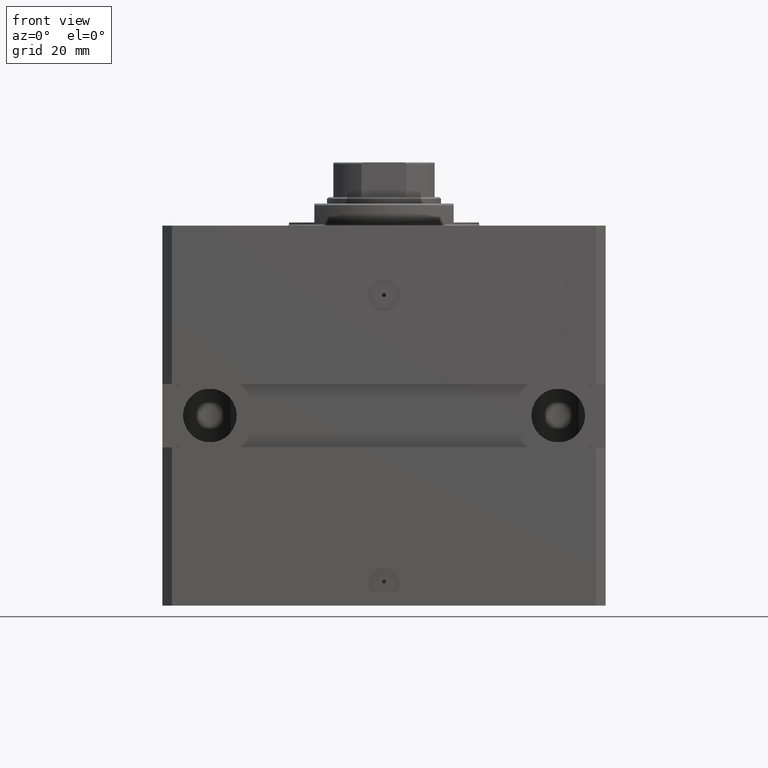
[diagram: clean part render]
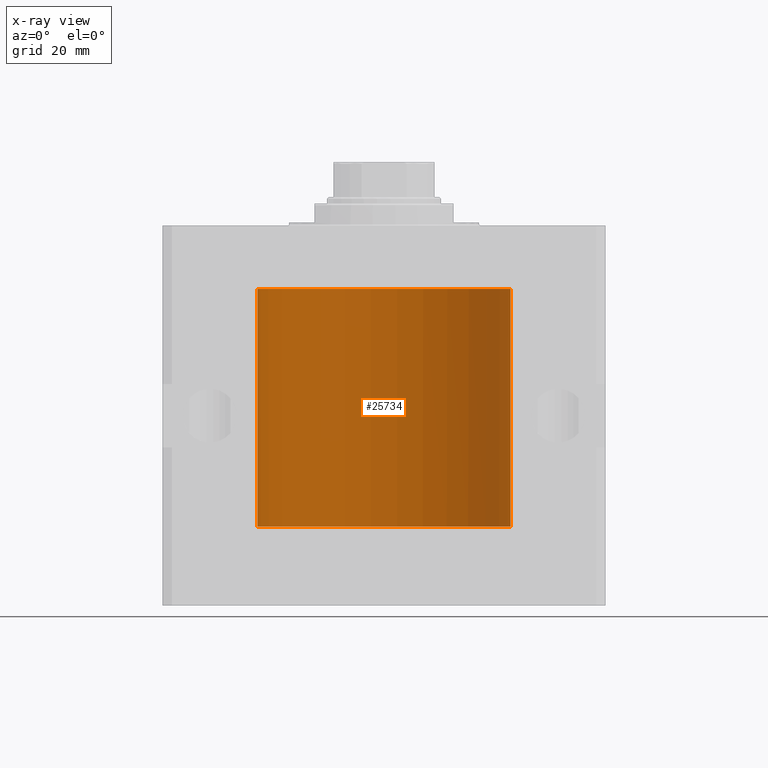
[diagram: x-ray — body ghosted, one internal face saturated and labeled with its STEP entity id]
A machine part, front view, then the same camera in x-ray: the body is ghosted and one INTERNAL B-rep face — a face not visible from any outside direction — is saturated and labeled: STEP entity #25734.
In plain terms, the highlighted cylindrical surface (partial cylindrical patch) has radius 40 mm, axis along (0, 0, 1).
Its self-contained STEP definition (entity closure, byte-faithful):
#69 = CARTESIAN_POINT ( 'NONE',  ( 39.99973678563279833, 0.1636739505491660862, -35.60873075736084559 ) ) ;
#288 = DIRECTION ( 'NONE',  ( 0.000000000000000000, 0.000000000000000000, 1.000000000000000000 ) ) ;
#706 = VERTEX_POINT ( 'NONE', #46974 ) ;
#710 = CARTESIAN_POINT ( 'NONE',  ( -39.99511688944040344, 0.6250000000003784750, -94.83689816871809342 ) ) ;
#1577 = CARTESIAN_POINT ( 'NONE',  ( -39.99883108112248919, 0.3150272514608761787, -34.45401719637956717 ) ) ;
#1665 = B_SPLINE_CURVE_WITH_KNOTS ( 'NONE', 3,
 ( #39274, #46743, #13048, #1577, #24289, #27784, #35537, #20033, #39016, #28040, #43499, #4804 ),
 .UNSPECIFIED., .F., .F.,
 ( 4, 2, 2, 2, 2, 4 ),
 ( 1.036137471307501474E-18, 0.0002442581846113557891, 0.0004885163692227106023, 0.0009770327384454201205, 0.001465549107668129639, 0.001954065476890838940 ),
 .UNSPECIFIED. ) ;
#2321 = CARTESIAN_POINT ( 'NONE',  ( 39.99999999999999289, 0.1631284562790711046, -34.37500000000014211 ) ) ;
#2499 = DIRECTION ( 'NONE',  ( -0.000000000000000000, -0.000000000000000000, 1.000000000000000000 ) ) ;
#2591 = CARTESIAN_POINT ( 'NONE',  ( 40.00000000000004974, 3.413887732429780293E-13, -94.37499999999677414 ) ) ;
#2823 = CARTESIAN_POINT ( 'NONE',  ( 39.99999999999999289, 0.1631284562793052784, -94.37500000000015632 ) ) ;
#3059 = CARTESIAN_POINT ( 'NONE',  ( 39.99884730045106096, 0.3253091163526227736, -94.44141080451316839 ) ) ;
#3170 = DIRECTION ( 'NONE',  ( 0.000000000000000000, 0.000000000000000000, 1.000000000000000000 ) ) ;
#4804 = CARTESIAN_POINT ( 'NONE',  ( -40.00000000000004974, 3.462873814982701370E-13, -35.62500000000321165 ) ) ;
#5157 = VECTOR ( 'NONE', #37518, 1000.000000000000000 ) ;
#6250 = ORIENTED_EDGE ( 'NONE', *, *, #27651, .T. ) ;
#6673 = DIRECTION ( 'NONE',  ( -0.000000000000000000, -0.000000000000000000, 1.000000000000000000 ) ) ;
#6714 = VERTEX_POINT ( 'NONE', #9674 ) ;
#6788 = CARTESIAN_POINT ( 'NONE',  ( 39.99628216152225235, 0.5574163469044073338, -35.32638498894925050 ) ) ;
#7024 = CARTESIAN_POINT ( 'NONE',  ( 39.99819409212158661, 0.3844402436586041860, -35.49948421922784547 ) ) ;
#7682 = CARTESIAN_POINT ( 'NONE',  ( -40.00000000000000000, 4.898587196589413026E-15, -94.37500000000000000 ) ) ;
#9419 = AXIS2_PLACEMENT_3D ( 'NONE', #37372, #3170, #30142 ) ;
#9674 = CARTESIAN_POINT ( 'NONE',  ( 40.00000000000000000, -8.127381911450081348E-16, -35.62500000000000711 ) ) ;
#10179 = CIRCLE ( 'NONE', #9419, 40.00000000000000000 ) ;
#10751 = CARTESIAN_POINT ( 'NONE',  ( -40.00000000000004974, 3.462873814982701370E-13, -35.62500000000321165 ) ) ;
#11493 = B_SPLINE_CURVE_WITH_KNOTS ( 'NONE', 3,
 ( #38803, #16562, #39557, #20565, #2321, #13798 ),
 .UNSPECIFIED., .F., .F.,
 ( 4, 2, 4 ),
 ( 0.0009772540346079494188, 0.001465659755749416406, 0.001954065476890883609 ),
 .UNSPECIFIED. ) ;
#11725 = ORIENTED_EDGE ( 'NONE', *, *, #21862, .T. ) ;
#12433 = DIRECTION ( 'NONE',  ( -0.000000000000000000, -0.000000000000000000, 1.000000000000000000 ) ) ;
#13048 = CARTESIAN_POINT ( 'NONE',  ( -39.99973691478699322, 0.1636360998065314876, -34.39126145361714748 ) ) ;
#13265 = CARTESIAN_POINT ( 'NONE',  ( 40.00000000000004974, 3.413887732429780293E-13, -94.37499999999677414 ) ) ;
#13798 = CARTESIAN_POINT ( 'NONE',  ( 40.00000000000004974, 3.413887943360836494E-13, -34.37499999999679545 ) ) ;
#13882 = CARTESIAN_POINT ( 'NONE',  ( -40.00000000000000000, 4.898587196589413026E-15, -94.37500000000000000 ) ) ;
#14027 = ORIENTED_EDGE ( 'NONE', *, *, #36324, .F. ) ;
#14694 = VERTEX_POINT ( 'NONE', #10751 ) ;
#15903 = CARTESIAN_POINT ( 'NONE',  ( -39.99628216152225235, 0.5574163469044005614, -94.67361501105077082 ) ) ;
#16470 = EDGE_LOOP ( 'NONE', ( #14027, #32609, #17064, #45772, #28310, #25977, #11725, #20710, #16556, #38487, #6250 ) ) ;
#16556 = ORIENTED_EDGE ( 'NONE', *, *, #18928, .T. ) ;
#16562 = CARTESIAN_POINT ( 'NONE',  ( 39.99511688944040344, 0.6249999999996637134, -34.83697203652874208 ) ) ;
#17064 = ORIENTED_EDGE ( 'NONE', *, *, #25318, .F. ) ;
#17486 = VERTEX_POINT ( 'NONE', #13265 ) ;
#18254 = CARTESIAN_POINT ( 'NONE',  ( 40.00000000000000000, -8.127381911450081348E-16, -35.62500000000000711 ) ) ;
#18408 = CARTESIAN_POINT ( 'NONE',  ( -40.00000000000000000, 0.08261046678389480369, -94.37500000000004263 ) ) ;
#18624 = CARTESIAN_POINT ( 'NONE',  ( 39.99511688944039633, 0.6250000000000323075, -95.00000000000000000 ) ) ;
#18757 = VERTEX_POINT ( 'NONE', #21177 ) ;
#18928 = EDGE_CURVE ( 'NONE', #19954, #46115, #10179, .T. ) ;
#19954 = VERTEX_POINT ( 'NONE', #37381 ) ;
#20010 = CIRCLE ( 'NONE', #24014, 40.00000000000000000 ) ;
#20033 = CARTESIAN_POINT ( 'NONE',  ( -39.99511598657579725, 0.6250577762831023287, -35.16284024614854076 ) ) ;
#20241 = LINE ( 'NONE', #30727, #36207 ) ;
#20565 = CARTESIAN_POINT ( 'NONE',  ( 39.99884730045106096, 0.3253091163521321660, -34.44141080451295522 ) ) ;
#20710 = ORIENTED_EDGE ( 'NONE', *, *, #36846, .T. ) ;
#21008 = EDGE_CURVE ( 'NONE', #17486, #6714, #43943, .T. ) ;
#21177 = CARTESIAN_POINT ( 'NONE',  ( 39.99511688944026844, 0.6250000000083444363, -34.99999999999904787 ) ) ;
#21454 = CARTESIAN_POINT ( 'NONE',  ( 40.00000000000000000, 0.000000000000000000, -95.00000000000000000 ) ) ;
#21862 = EDGE_CURVE ( 'NONE', #18757, #41120, #11493, .T. ) ;
#22215 = EDGE_CURVE ( 'NONE', #706, #46115, #37367, .T. ) ;
#22276 = LINE ( 'NONE', #38274, #5157 ) ;
#22465 = DIRECTION ( 'NONE',  ( 1.000000000000000000, 0.000000000000000000, 0.000000000000000000 ) ) ;
#23060 = EDGE_CURVE ( 'NONE', #6714, #18757, #32819, .T. ) ;
#23914 = CARTESIAN_POINT ( 'NONE',  ( 0.000000000000000000, 0.000000000000000000, -95.00000000000000000 ) ) ;
#24014 = AXIS2_PLACEMENT_3D ( 'NONE', #38202, #288, #22465 ) ;
#24175 = FACE_OUTER_BOUND ( 'NONE', #16470, .T. ) ;
#24289 = CARTESIAN_POINT ( 'NONE',  ( -39.99819482034362039, 0.3843641341271077372, -34.50046008996472580 ) ) ;
#24482 = CARTESIAN_POINT ( 'NONE',  ( 40.00000000000004974, 3.413887943360836494E-13, -34.37499999999679545 ) ) ;
#25318 = EDGE_CURVE ( 'NONE', #48946, #28742, #20010, .T. ) ;
#25707 = EDGE_CURVE ( 'NONE', #33697, #28742, #47570, .T. ) ;
#25734 = ADVANCED_FACE ( 'NONE', ( #24175 ), #46119, .F. ) ;
#25790 = CARTESIAN_POINT ( 'NONE',  ( 39.99511688944039633, 0.6250000000000323075, -95.00000000000000000 ) ) ;
#25977 = ORIENTED_EDGE ( 'NONE', *, *, #23060, .T. ) ;
#26254 = CARTESIAN_POINT ( 'NONE',  ( 39.99511688944039633, 0.6250000000003876899, -35.16310183128194922 ) ) ;
#26514 = CARTESIAN_POINT ( 'NONE',  ( 39.99511688944026844, 0.6250000000083444363, -34.99999999999904787 ) ) ;
#27651 = EDGE_CURVE ( 'NONE', #706, #14694, #1665, .T. ) ;
#27784 = CARTESIAN_POINT ( 'NONE',  ( -39.99628330279644928, 0.5573335244821722156, -34.67349122557948249 ) ) ;
#28040 = CARTESIAN_POINT ( 'NONE',  ( -39.99884667815961592, 0.3253863549934230548, -35.55855380835959778 ) ) ;
#28310 = ORIENTED_EDGE ( 'NONE', *, *, #21008, .T. ) ;
#28742 = VERTEX_POINT ( 'NONE', #48913 ) ;
#30142 = DIRECTION ( 'NONE',  ( 1.000000000000000000, 0.000000000000000000, 0.000000000000000000 ) ) ;
#30727 = CARTESIAN_POINT ( 'NONE',  ( -40.00000000000000000, 4.898587196589413026E-15, -95.00000000000000000 ) ) ;
#31160 = CARTESIAN_POINT ( 'NONE',  ( -39.99819409212159371, 0.3844402436586072946, -94.50051578077217584 ) ) ;
#31970 = AXIS2_PLACEMENT_3D ( 'NONE', #23914, #12433, #35158 ) ;
#32609 = ORIENTED_EDGE ( 'NONE', *, *, #25707, .T. ) ;
#32819 = B_SPLINE_CURVE_WITH_KNOTS ( 'NONE', 3,
 ( #18254, #45733, #69, #44985, #7024, #6788, #26254, #26514 ),
 .UNSPECIFIED., .F., .F.,
 ( 4, 2, 2, 4 ),
 ( 7.898288041491570923E-19, 0.0002443135086519880052, 0.0004886270173039750347, 0.0009772540346079494188 ),
 .UNSPECIFIED. ) ;
#32956 = B_SPLINE_CURVE_WITH_KNOTS ( 'NONE', 3,
 ( #25790, #48984, #44512, #3059, #2823, #2591 ),
 .UNSPECIFIED., .F., .F.,
 ( 4, 2, 4 ),
 ( 0.0009772540346065596885, 0.001465659755748721432, 0.001954065476890883175 ),
 .UNSPECIFIED. ) ;
#33662 = CARTESIAN_POINT ( 'NONE',  ( -39.99883059471594038, 0.3150922677711069375, -94.45405205391325865 ) ) ;
#33697 = VERTEX_POINT ( 'NONE', #13882 ) ;
#35158 = DIRECTION ( 'NONE',  ( 1.000000000000000000, 0.000000000000000000, 0.000000000000000000 ) ) ;
#35537 = CARTESIAN_POINT ( 'NONE',  ( -39.99511779353280616, 0.6249421451454513221, -34.83671655111833587 ) ) ;
#36207 = VECTOR ( 'NONE', #42448, 1000.000000000000000 ) ;
#36324 = EDGE_CURVE ( 'NONE', #33697, #14694, #20241, .T. ) ;
#36846 = EDGE_CURVE ( 'NONE', #41120, #19954, #22276, .T. ) ;
#37367 = LINE ( 'NONE', #44862, #47796 ) ;
#37372 = CARTESIAN_POINT ( 'NONE',  ( 0.000000000000000000, 0.000000000000000000, -20.00000000000000355 ) ) ;
#37381 = CARTESIAN_POINT ( 'NONE',  ( 40.00000000000000000, 0.000000000000000000, -20.00000000000000355 ) ) ;
#37518 = DIRECTION ( 'NONE',  ( -0.000000000000000000, -0.000000000000000000, 1.000000000000000000 ) ) ;
#37846 = CARTESIAN_POINT ( 'NONE',  ( -40.00000000000000000, 4.898587196589413026E-15, -20.00000000000000355 ) ) ;
#38145 = CARTESIAN_POINT ( 'NONE',  ( -39.99973678563279122, 0.1636739505491698610, -94.39126924263916862 ) ) ;
#38202 = CARTESIAN_POINT ( 'NONE',  ( 0.000000000000000000, 0.000000000000000000, -95.00000000000000000 ) ) ;
#38274 = CARTESIAN_POINT ( 'NONE',  ( 40.00000000000000000, 0.000000000000000000, -95.00000000000000000 ) ) ;
#38487 = ORIENTED_EDGE ( 'NONE', *, *, #22215, .F. ) ;
#38803 = CARTESIAN_POINT ( 'NONE',  ( 39.99511688944026844, 0.6250000000083444363, -34.99999999999904787 ) ) ;
#39016 = CARTESIAN_POINT ( 'NONE',  ( -39.99626798708276709, 0.5587118831704992461, -35.32511485424845432 ) ) ;
#39274 = CARTESIAN_POINT ( 'NONE',  ( -40.00000000000000000, 1.067655236296513633E-14, -34.37500000000000000 ) ) ;
#39557 = CARTESIAN_POINT ( 'NONE',  ( 39.99626911702399923, 0.5586305617998182926, -34.67476192424639692 ) ) ;
#41120 = VERTEX_POINT ( 'NONE', #24482 ) ;
#42448 = DIRECTION ( 'NONE',  ( -0.000000000000000000, -0.000000000000000000, 1.000000000000000000 ) ) ;
#43421 = EDGE_CURVE ( 'NONE', #48946, #17486, #32956, .T. ) ;
#43499 = CARTESIAN_POINT ( 'NONE',  ( -39.99999999999999289, 0.1631654129523948116, -35.62499999999986500 ) ) ;
#43943 = LINE ( 'NONE', #21454, #45323 ) ;
#44512 = CARTESIAN_POINT ( 'NONE',  ( 39.99626911702399923, 0.5586305618003357676, -94.67476192424716430 ) ) ;
#44862 = CARTESIAN_POINT ( 'NONE',  ( -40.00000000000000000, 4.898587196589413026E-15, -95.00000000000000000 ) ) ;
#44985 = CARTESIAN_POINT ( 'NONE',  ( 39.99883059471594038, 0.3150922677711073816, -35.54594794608674135 ) ) ;
#45323 = VECTOR ( 'NONE', #2499, 1000.000000000000000 ) ;
#45733 = CARTESIAN_POINT ( 'NONE',  ( 39.99999999999999289, 0.08261046678389016851, -35.62500000000000711 ) ) ;
#45772 = ORIENTED_EDGE ( 'NONE', *, *, #43421, .T. ) ;
#46115 = VERTEX_POINT ( 'NONE', #37846 ) ;
#46119 = CYLINDRICAL_SURFACE ( 'NONE', #31970, 40.00000000000000000 ) ;
#46374 = CARTESIAN_POINT ( 'NONE',  ( -39.99511688944026844, 0.6250000000083313356, -95.00000000000095213 ) ) ;
#46743 = CARTESIAN_POINT ( 'NONE',  ( -40.00000000000000000, 0.08259175989844856625, -34.37500000000000711 ) ) ;
#46974 = CARTESIAN_POINT ( 'NONE',  ( -40.00000000000000000, 1.067655236296513633E-14, -34.37500000000000000 ) ) ;
#47570 = B_SPLINE_CURVE_WITH_KNOTS ( 'NONE', 3,
 ( #7682, #18408, #38145, #33662, #31160, #15903, #710, #46374 ),
 .UNSPECIFIED., .F., .F.,
 ( 4, 2, 2, 4 ),
 ( 2.088332496733259407E-18, 0.0002443135086519913120, 0.0004886270173039804557, 0.0009772540346079294695 ),
 .UNSPECIFIED. ) ;
#47796 = VECTOR ( 'NONE', #6673, 1000.000000000000000 ) ;
#48913 = CARTESIAN_POINT ( 'NONE',  ( -39.99511688944026844, 0.6250000000083313356, -95.00000000000095213 ) ) ;
#48946 = VERTEX_POINT ( 'NONE', #18624 ) ;
#48984 = CARTESIAN_POINT ( 'NONE',  ( 39.99511688944039633, 0.6250000000000321965, -94.83697203652990027 ) ) ;